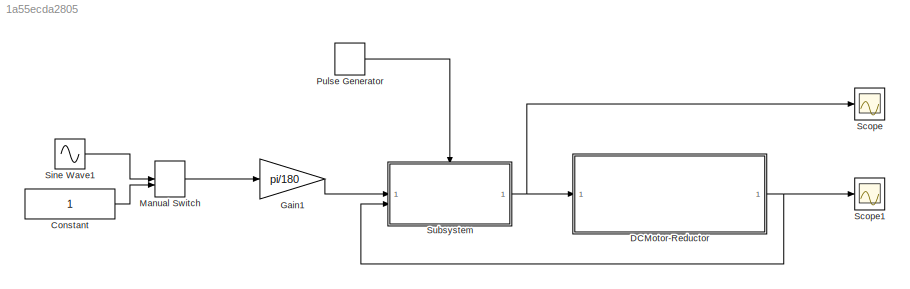
MODEL slx_1a55ecda2805
KIND model
CONFIG AbsTol = auto
CONFIG EnableMultiTasking = off
CONFIG FixedStep = auto
CONFIG MaxStep = 0.005
CONFIG MinStep = auto
CONFIG RelTol = 1e-3
CONFIG SampleTimeConstraint = Unconstrained
CONFIG SolverName = ode23t
CONFIG StartTime = 0.0
CONFIG StopTime = 100
BLOCK [Constant] Constant
BLOCK [SubSystem] DCMotor-Reductor
  ReferencedSubsystem = DCMotor_Reductor23a
BLOCK [Gain] Gain1
  Gain = pi/180
BLOCK [ManualSwitch] Manual Switch
BLOCK [DiscretePulseGenerator] Pulse Generator
  Period = 0.005
  PulseType = Time based
  PulseWidth = 5
BLOCK [Scope] Scope
  Floating = off
  NumInputPorts = 1
  ScopeSpecificationString = Simulink.scopes.TimeScopeBlockCfg('CurrentConfiguration', extmgr.ConfigurationSet(extmgr.Configuration('Core','General UI',true),extmgr.Configuration('Core','Source UI',true),extmgr.Configuration('Sources','WiredSimulink',true),extmgr.Configuration('Visuals','Time Domain',true,'SerializedDisplays',{struct('MinYLimReal','-8.78236','MaxYLimReal','11.20578','YLabelReal','','MinYLimMag','0.00000','Max...<+1361ch>
BLOCK [Scope] Scope1
  Floating = off
  NumInputPorts = 1
  ScopeSpecificationString = Simulink.scopes.TimeScopeBlockCfg('CurrentConfiguration', extmgr.ConfigurationSet(extmgr.Configuration('Core','General UI',true),extmgr.Configuration('Core','Source UI',true),extmgr.Configuration('Sources','WiredSimulink',true,'DataLoggingVariableName','ScopeData1'),extmgr.Configuration('Visuals','Time Domain',true,'SerializedDisplays',{struct('MinYLimReal','-3.07154','MaxYLimReal','3.07205','YLab...<+1731ch>
BLOCK [Sin] Sine Wave1
  Amplitude = 140
  Frequency = 0.63
  SampleTime = 0
BLOCK [SubSystem] Subsystem
  ReferencedSubsystem = Trigger_Regulator
LINE Constant:1 -> Manual Switch:2
NET DCMotor-Reductor:1 -> Scope1:1, Subsystem:2
LINE Gain1:1 -> Subsystem:1
LINE Manual Switch:1 -> Gain1:1
LINE Pulse Generator:1 -> Subsystem:trigger
LINE Sine Wave1:1 -> Manual Switch:1
NET Subsystem:1 -> DCMotor-Reductor:1, Scope:1
note: NET lines group one-source signal fan-out (src -> all destinations, sorted); 1:1 wires keep LINE
